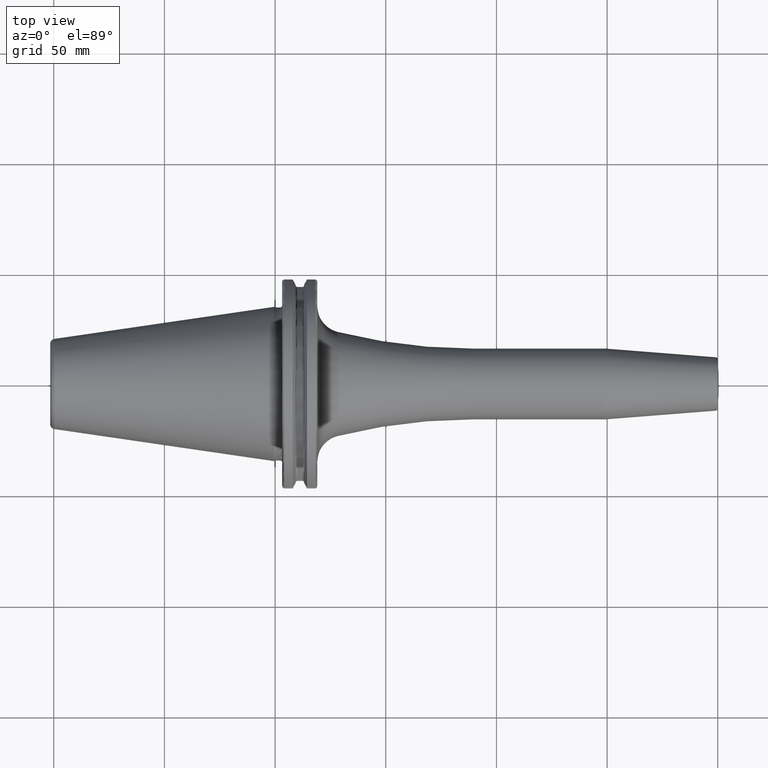
[diagram: clean part render]
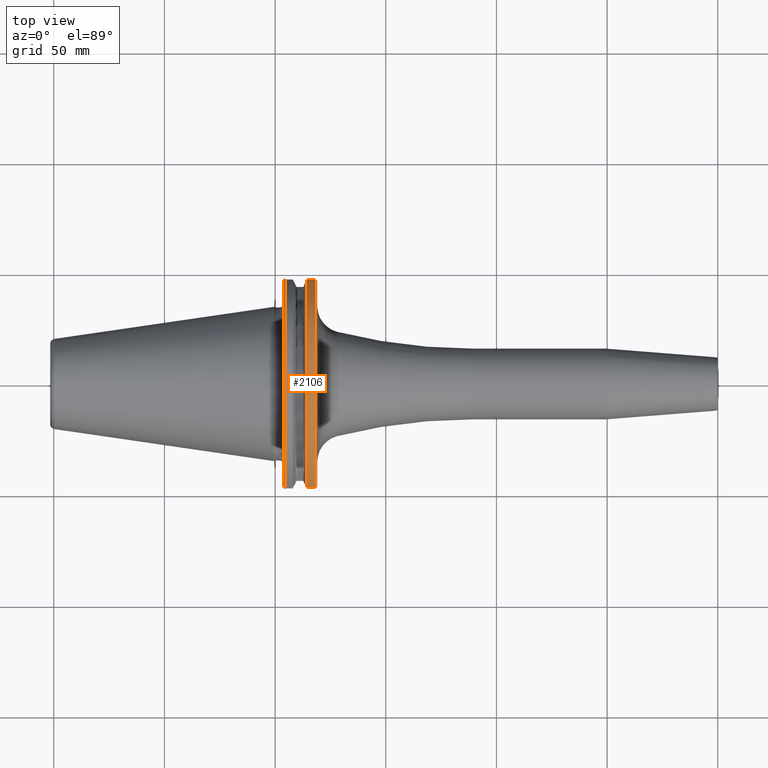
[diagram: same view with one face highlighted and labeled with its STEP entity id]
A machine part, top view. The second image highlights one B-rep face of the part: STEP entity #2106.
In plain terms, the highlighted cylindrical surface (partial cylindrical patch) has radius 48.7375 mm, axis along (1, 0, 0).
Its self-contained STEP definition (entity closure, byte-faithful):
#457=CARTESIAN_POINT('',(1.441537838583E1,4.699929686974E1,1.29E1));
#469=CARTESIAN_POINT('',(1.441537838583E1,-4.699929686974E1,1.29E1));
#489=DIRECTION('',(1.E0,0.E0,0.E0));
#490=VECTOR('',#489,3.634621614173E0);
#491=CARTESIAN_POINT('',(1.441537838583E1,4.699929686974E1,1.29E1));
#492=LINE('',#491,#490);
#493=CARTESIAN_POINT('',(1.805E1,0.E0,0.E0));
#494=DIRECTION('',(1.E0,0.E0,0.E0));
#495=DIRECTION('',(0.E0,9.643354064066E-1,2.646832521159E-1));
#496=AXIS2_PLACEMENT_3D('',#493,#494,#495);
#498=DIRECTION('',(1.E0,0.E0,0.E0));
#499=VECTOR('',#498,3.634621614173E0);
#500=CARTESIAN_POINT('',(1.441537838583E1,-4.699929686974E1,1.29E1));
#501=LINE('',#500,#499);
#502=CARTESIAN_POINT('',(1.441537838583E1,0.E0,0.E0));
#503=DIRECTION('',(1.E0,0.E0,0.E0));
#504=DIRECTION('',(0.E0,9.643354064066E-1,2.646832521159E-1));
#505=AXIS2_PLACEMENT_3D('',#502,#503,#504);
#1334=VERTEX_POINT('',#457);
#1335=VERTEX_POINT('',#469);
#1366=CARTESIAN_POINT('',(1.805E1,4.699929686974E1,1.29E1));
#1367=VERTEX_POINT('',#1366);
#1370=CARTESIAN_POINT('',(1.805E1,-4.699929686974E1,1.29E1));
#1371=VERTEX_POINT('',#1370);
#2094=CARTESIAN_POINT('',(-1.076325E2,0.E0,0.E0));
#2095=DIRECTION('',(1.E0,0.E0,0.E0));
#2096=DIRECTION('',(0.E0,-1.E0,0.E0));
#2097=AXIS2_PLACEMENT_3D('',#2094,#2095,#2096);
#2098=CYLINDRICAL_SURFACE('',#2097,4.87375E1);
#2099=ORIENTED_EDGE('',*,*,#1926,.T.);
#2101=ORIENTED_EDGE('',*,*,#2100,.T.);
#2102=ORIENTED_EDGE('',*,*,#1971,.F.);
#2103=ORIENTED_EDGE('',*,*,#2074,.F.);
#2104=EDGE_LOOP('',(#2099,#2101,#2102,#2103));
#2105=FACE_OUTER_BOUND('',#2104,.F.);
#2106=ADVANCED_FACE('',(#2105),#2098,.T.);
#497=CIRCLE('',#496,4.87375E1);
#506=CIRCLE('',#505,4.87375E1);
#1926=EDGE_CURVE('',#1334,#1367,#492,.T.);
#1971=EDGE_CURVE('',#1335,#1371,#501,.T.);
#2074=EDGE_CURVE('',#1334,#1335,#506,.T.);
#2100=EDGE_CURVE('',#1367,#1371,#497,.T.);